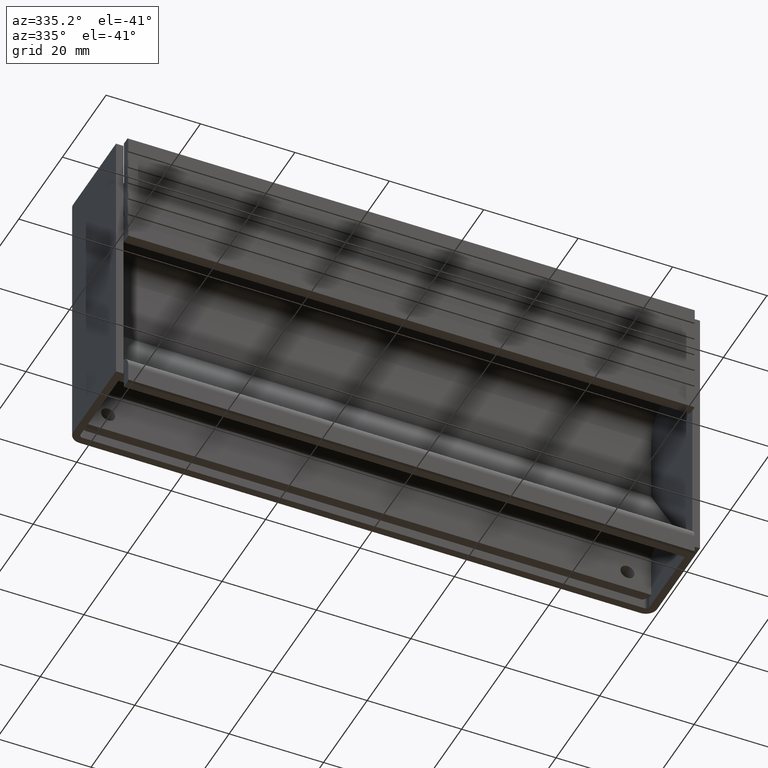
[diagram: clean part render]
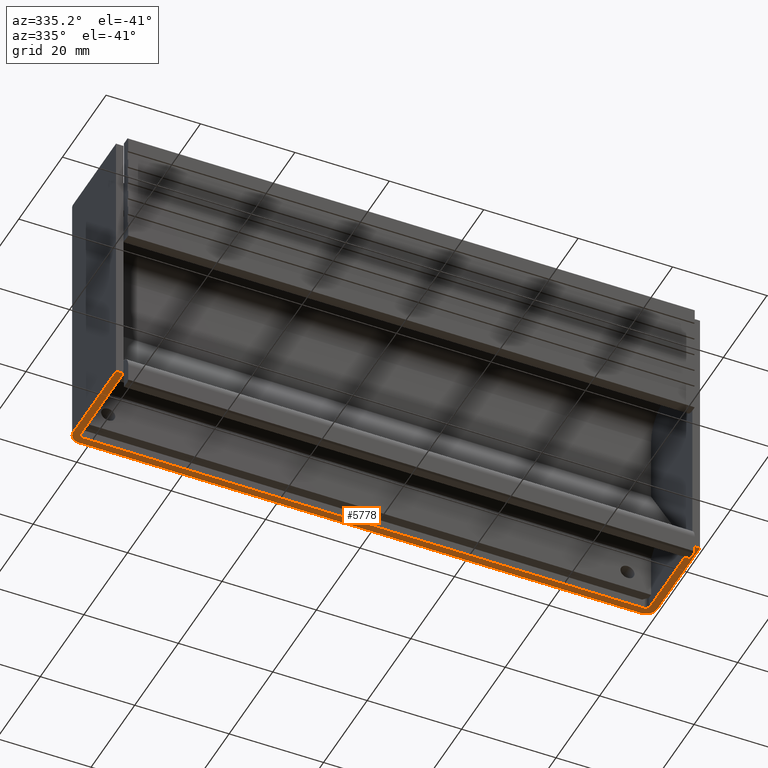
[diagram: same view with one face highlighted and labeled with its STEP entity id]
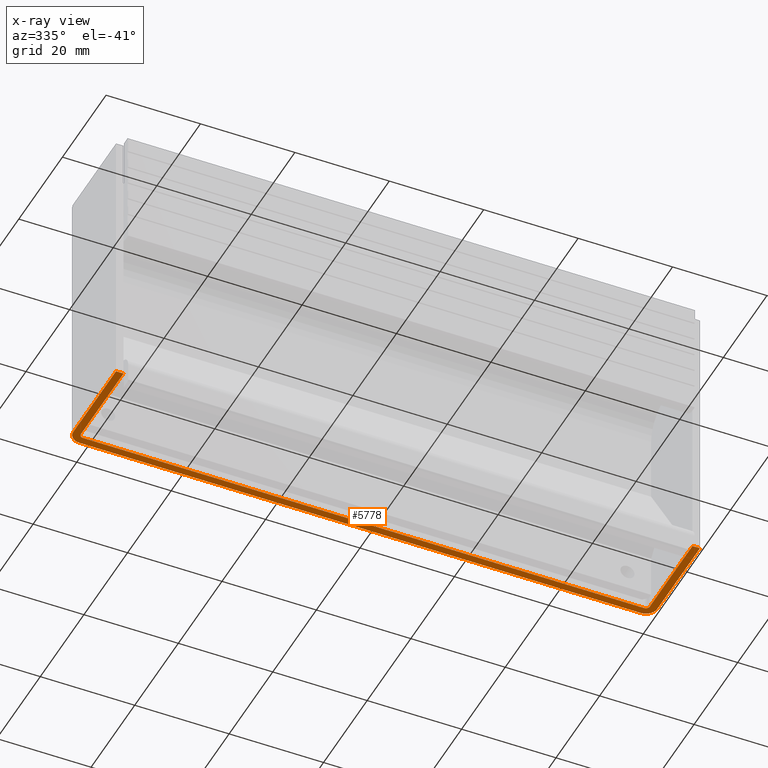
[diagram: x-ray of the same camera — body ghosted, the highlighted face saturated]
A machine part, auxiliary view. The second image highlights one B-rep face of the part: STEP entity #5778.
The next image is the same camera in x-ray: the body ghosted, the highlighted face saturated — about 0% of this face is hidden behind the body in this view.
In plain terms, the highlighted face is a freeform B-spline surface patch.
Its self-contained STEP definition (entity closure, byte-faithful):
#5655=CARTESIAN_POINT('',(-68.028813157095016,1.098899957359721,-29.0));
#5656=CARTESIAN_POINT('',(68.028808733238293,1.098899957359721,-29.0));
#5657=CARTESIAN_POINT('',(-68.028813157095030,-23.098900547445709,-29.0));
#5658=CARTESIAN_POINT('',(68.028808733238293,-23.098900547445709,-29.0));
#5659=B_SPLINE_SURFACE_WITH_KNOTS('',1,1,((#5655,#5657),(#5656,#5658)),.UNSPECIFIED.,.F.,.F.,.U.,(2,2),(2,2),(0.0,136.057621890333310),(0.0,24.197800504805429),.UNSPECIFIED.);
#5660=CARTESIAN_POINT('',(-59.450000000000003,-1.421085E-014,-29.0));
#5661=VERTEX_POINT('',#5660);
#5662=CARTESIAN_POINT('',(-61.850000000000001,-2.400000000000000,-29.0));
#5663=VERTEX_POINT('',#5662);
#5664=CARTESIAN_POINT('',(-59.450000000000003,0.0,-29.0));
#5665=CARTESIAN_POINT('',(-61.849999999999994,0.0,-29.000000000000007));
#5666=CARTESIAN_POINT('',(-61.850000000000001,-2.400000000000000,-29.0));
#5674=(BOUNDED_CURVE()B_SPLINE_CURVE(2,(#5664,#5665,#5666),.UNSPECIFIED.,.F.,.U.)CURVE()GEOMETRIC_REPRESENTATION_ITEM()QUASI_UNIFORM_CURVE()RATIONAL_B_SPLINE_CURVE((1.0,0.707106781186547,1.0))REPRESENTATION_ITEM(''));
#5675=EDGE_CURVE('',#5661,#5663,#5674,.T.);
#5676=ORIENTED_EDGE('',*,*,#5675,.F.);
#5677=CARTESIAN_POINT('',(59.450000000000003,-7.105427E-015,-29.0));
#5678=VERTEX_POINT('',#5677);
#5679=CARTESIAN_POINT('',(59.450000000000003,-7.105427E-015,-29.0));
#5680=CARTESIAN_POINT('',(-59.450000000000003,-1.421085E-014,-29.0));
#5681=QUASI_UNIFORM_CURVE('',1,(#5679,#5680),.UNSPECIFIED.,.F.,.U.);
#5682=EDGE_CURVE('',#5678,#5661,#5681,.T.);
#5683=ORIENTED_EDGE('',*,*,#5682,.F.);
#5684=CARTESIAN_POINT('',(61.850000000000001,-2.400000000000000,-29.0));
#5685=VERTEX_POINT('',#5684);
#5686=CARTESIAN_POINT('',(61.850000000000001,-2.400000000000000,-29.0));
#5687=CARTESIAN_POINT('',(61.849999999999994,0.0,-29.000000000000007));
#5688=CARTESIAN_POINT('',(59.450000000000003,0.0,-29.0));
#5696=(BOUNDED_CURVE()B_SPLINE_CURVE(2,(#5686,#5687,#5688),.UNSPECIFIED.,.F.,.U.)CURVE()GEOMETRIC_REPRESENTATION_ITEM()QUASI_UNIFORM_CURVE()RATIONAL_B_SPLINE_CURVE((1.0,0.707106781186547,1.0))REPRESENTATION_ITEM(''));
#5697=EDGE_CURVE('',#5685,#5678,#5696,.T.);
#5698=ORIENTED_EDGE('',*,*,#5697,.F.);
#5699=CARTESIAN_POINT('',(61.850000000000001,-22.0,-29.0));
#5700=VERTEX_POINT('',#5699);
#5701=CARTESIAN_POINT('',(61.850000000000001,-22.0,-29.0));
#5702=CARTESIAN_POINT('',(61.850000000000001,-2.400000000000000,-29.0));
#5703=QUASI_UNIFORM_CURVE('',1,(#5701,#5702),.UNSPECIFIED.,.F.,.U.);
#5704=EDGE_CURVE('',#5700,#5685,#5703,.T.);
#5705=ORIENTED_EDGE('',*,*,#5704,.F.);
#5706=CARTESIAN_POINT('',(60.250000000000000,-22.0,-29.0));
#5707=VERTEX_POINT('',#5706);
#5708=CARTESIAN_POINT('',(60.250000000000000,-22.0,-29.0));
#5709=CARTESIAN_POINT('',(61.850000000000001,-22.0,-29.0));
#5710=QUASI_UNIFORM_CURVE('',1,(#5708,#5709),.UNSPECIFIED.,.F.,.U.);
#5711=EDGE_CURVE('',#5707,#5700,#5710,.T.);
#5712=ORIENTED_EDGE('',*,*,#5711,.F.);
#5713=CARTESIAN_POINT('',(60.250000000000000,-2.400000000000000,-29.0));
#5714=VERTEX_POINT('',#5713);
#5715=CARTESIAN_POINT('',(60.250000000000000,-2.400000000000000,-29.0));
#5716=CARTESIAN_POINT('',(60.250000000000000,-22.0,-29.0));
#5717=QUASI_UNIFORM_CURVE('',1,(#5715,#5716),.UNSPECIFIED.,.F.,.U.);
#5718=EDGE_CURVE('',#5714,#5707,#5717,.T.);
#5719=ORIENTED_EDGE('',*,*,#5718,.F.);
#5720=CARTESIAN_POINT('',(59.450000000000003,-1.600000000000000,-29.0));
#5721=VERTEX_POINT('',#5720);
#5722=CARTESIAN_POINT('',(60.250000000000007,-2.400000000000000,-29.0));
#5723=CARTESIAN_POINT('',(60.250000000000007,-1.600000000000000,-29.0));
#5724=CARTESIAN_POINT('',(59.450000000000003,-1.600000000000000,-29.0));
#5732=(BOUNDED_CURVE()B_SPLINE_CURVE(2,(#5722,#5723,#5724),.UNSPECIFIED.,.F.,.U.)CURVE()GEOMETRIC_REPRESENTATION_ITEM()QUASI_UNIFORM_CURVE()RATIONAL_B_SPLINE_CURVE((1.0,0.707106781186548,1.0))REPRESENTATION_ITEM(''));
#5733=EDGE_CURVE('',#5714,#5721,#5732,.T.);
#5734=ORIENTED_EDGE('',*,*,#5733,.T.);
#5735=CARTESIAN_POINT('',(-59.450000000000003,-1.600000000000000,-29.0));
#5736=VERTEX_POINT('',#5735);
#5737=CARTESIAN_POINT('',(-59.450000000000003,-1.600000000000000,-29.0));
#5738=CARTESIAN_POINT('',(59.450000000000003,-1.600000000000000,-29.0));
#5739=QUASI_UNIFORM_CURVE('',1,(#5737,#5738),.UNSPECIFIED.,.F.,.U.);
#5740=EDGE_CURVE('',#5736,#5721,#5739,.T.);
#5741=ORIENTED_EDGE('',*,*,#5740,.F.);
#5742=CARTESIAN_POINT('',(-60.250000000000000,-2.400000000000000,-29.0));
#5743=VERTEX_POINT('',#5742);
#5744=CARTESIAN_POINT('',(-59.450000000000003,-1.600000000000000,-29.0));
#5745=CARTESIAN_POINT('',(-60.250000000000007,-1.600000000000000,-29.0));
#5746=CARTESIAN_POINT('',(-60.250000000000007,-2.400000000000000,-29.0));
#5754=(BOUNDED_CURVE()B_SPLINE_CURVE(2,(#5744,#5745,#5746),.UNSPECIFIED.,.F.,.U.)CURVE()GEOMETRIC_REPRESENTATION_ITEM()QUASI_UNIFORM_CURVE()RATIONAL_B_SPLINE_CURVE((1.0,0.707106781186548,1.0))REPRESENTATION_ITEM(''));
#5755=EDGE_CURVE('',#5736,#5743,#5754,.T.);
#5756=ORIENTED_EDGE('',*,*,#5755,.T.);
#5757=CARTESIAN_POINT('',(-60.250000000000000,-22.0,-29.0));
#5758=VERTEX_POINT('',#5757);
#5759=CARTESIAN_POINT('',(-60.250000000000000,-22.0,-29.0));
#5760=CARTESIAN_POINT('',(-60.250000000000000,-2.400000000000000,-29.0));
#5761=QUASI_UNIFORM_CURVE('',1,(#5759,#5760),.UNSPECIFIED.,.F.,.U.);
#5762=EDGE_CURVE('',#5758,#5743,#5761,.T.);
#5763=ORIENTED_EDGE('',*,*,#5762,.F.);
#5764=CARTESIAN_POINT('',(-61.850000000000001,-22.0,-29.0));
#5765=VERTEX_POINT('',#5764);
#5766=CARTESIAN_POINT('',(-61.850000000000001,-22.0,-29.0));
#5767=CARTESIAN_POINT('',(-60.250000000000000,-22.0,-29.0));
#5768=QUASI_UNIFORM_CURVE('',1,(#5766,#5767),.UNSPECIFIED.,.F.,.U.);
#5769=EDGE_CURVE('',#5765,#5758,#5768,.T.);
#5770=ORIENTED_EDGE('',*,*,#5769,.F.);
#5771=CARTESIAN_POINT('',(-61.850000000000001,-2.400000000000000,-29.0));
#5772=CARTESIAN_POINT('',(-61.850000000000001,-22.0,-29.0));
#5773=QUASI_UNIFORM_CURVE('',1,(#5771,#5772),.UNSPECIFIED.,.F.,.U.);
#5774=EDGE_CURVE('',#5663,#5765,#5773,.T.);
#5775=ORIENTED_EDGE('',*,*,#5774,.F.);
#5776=EDGE_LOOP('',(#5676,#5683,#5698,#5705,#5712,#5719,#5734,#5741,#5756,#5763,#5770,#5775));
#5777=FACE_OUTER_BOUND('',#5776,.T.);
#5778=ADVANCED_FACE('',(#5777),#5659,.T.);